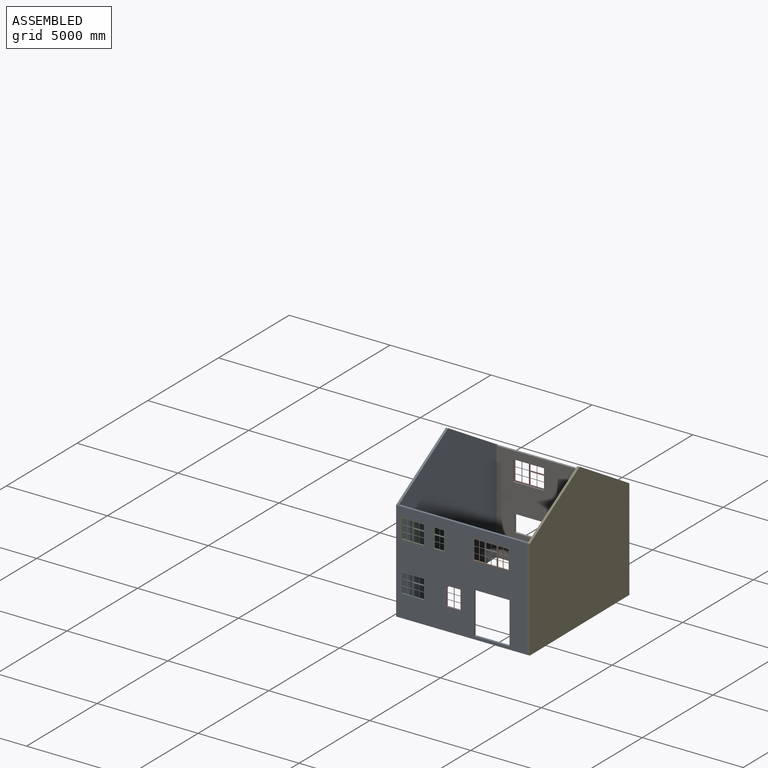
[diagram: assembled view]
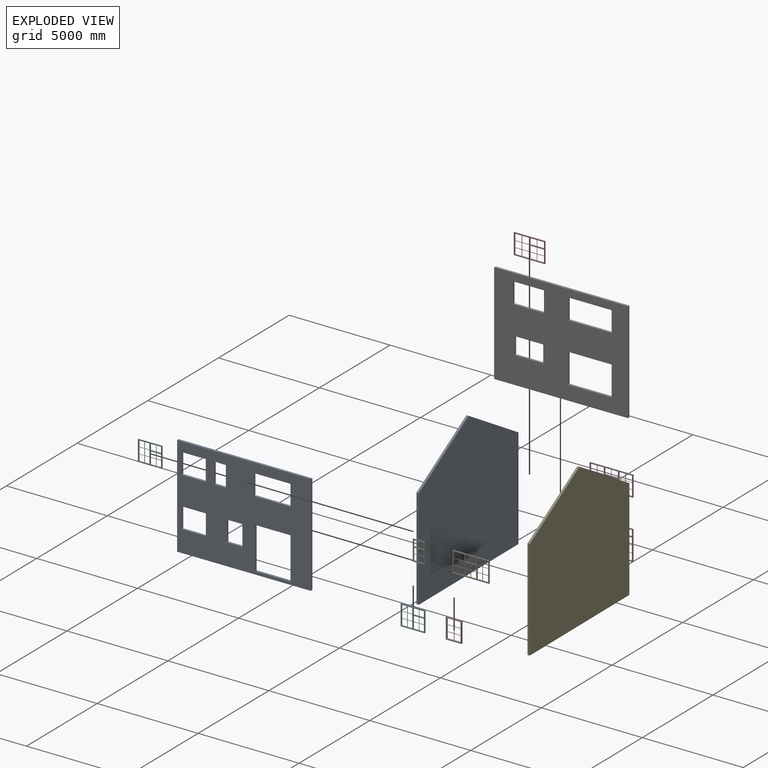
[diagram: exploded view]
GUIDED TOUR — MATED ASSEMBLY (Onshape document ad327fb9f70c7c02ca166393, AutoMate assembly ad327fb9f70c7c02ca166393_e42b151d0dddc3678c9ccd06_790ce3b8b7bdf82932ab4021_default)

This assembly has 12 components, labeled P0..P11 below (a component is one placed occurrence of a part; the same part can appear more than once), held together by 33 mates. A mate is a constraint between two components; its type names the relative motion it leaves free:
  PLANAR — leaves sliding in the plane through the listed point (normal = the listed direction) and rotation about that normal free.
Axis/direction vectors are unit vectors and 'through' points are millimeter coordinates, both in the assembly's world frame.

MATES
  1. PLANAR "Planar 12": P1 <-> P8, direction (0.005, -1.000, 0.000) through (1860.18, -4066.74, 3330.43) mm
  2. PLANAR "Planar 16": P9 <-> P6, direction (0.000, 0.000, 1.000) through (1852.17, 3008.31, 1499.83) mm
  3. PLANAR "Planar 18": P9 <-> P6, direction (-0.005, 1.000, 0.000) through (1852.06, 3033.31, 827.41) mm
  4. PLANAR "Planar 8": P0 <-> P6, direction (-0.005, 1.000, 0.000) through (-2811.39, 3011.17, 1812.83) mm
  5. PLANAR "Planar 25": P5 <-> P8, direction (0.000, 0.000, 1.000) through (-2011.20, -4085.11, 1402.83) mm
  6. PLANAR "Planar 21": P8 <-> P2, direction (0.005, -1.000, 0.000) through (438.30, -4073.49, 1857.86) mm
  7. PLANAR "Planar 22": P7 <-> P6, direction (0.000, 0.000, 1.000) through (-1175.79, 2993.93, 3932.83) mm
  8. PLANAR "Planar 7": P6 <-> P0, direction (-1.000, -0.005, 0.000) through (-2867.13, 2954.90, 1812.83) mm
  9. PLANAR "Planar 6": P8 <-> P4, direction (0.000, 0.000, -1.000) through (466.01, -4017.35, -687.17) mm
  10. PLANAR "Planar 31": P10 <-> P8, direction (0.005, -1.000, 0.000) through (-713.71, -4078.95, 3495.33) mm
  11. PLANAR "Planar 3": P6 <-> P4, direction (0.000, 0.000, -1.000) through (432.84, 2970.57, -687.17) mm
  12. PLANAR "Planar 14": P3 <-> P6, direction (0.000, 0.000, 1.000) through (1860.17, 3008.34, 3932.83) mm
  13. PLANAR "Planar 26": P5 <-> P8, direction (-1.000, -0.005, 0.000) through (-2608.81, -4062.95, 892.83) mm
  14. PLANAR "Planar 19": P8 <-> P2, direction (1.000, 0.005, 0.000) through (-2608.95, -4031.95, 3322.83) mm
  15. PLANAR "Planar 24": P7 <-> P6, direction (-0.005, 1.000, 0.000) through (-1136.16, 3019.12, 3438.84) mm
  16. PLANAR "Planar 1": P6 <-> P4, direction (1.000, 0.005, 0.000) through (3732.80, 2986.23, 1812.83) mm
  17. PLANAR "Planar 5": P8 <-> P4, direction (1.000, 0.005, 0.000) through (3765.97, -4001.69, 1812.83) mm
  18. PLANAR "Planar 28": P5 <-> P8, direction (0.005, -1.000, 0.000) through (-1984.51, -4084.99, 906.75) mm
  19. PLANAR "Planar 4": P4 <-> P8, direction (0.005, -1.000, 0.000) through (3710.24, -4057.95, 1812.83) mm
  20. PLANAR "Planar 9": P0 <-> P6, direction (0.000, 0.000, -1.000) through (-2794.54, -538.79, -687.17) mm
  21. PLANAR "Planar 30": P10 <-> P8, direction (1.000, 0.005, 0.000) through (-423.83, -4052.58, 3322.83) mm
  22. PLANAR "Planar 32": P11 <-> P8, direction (0.000, 0.000, 1.000) through (6.10, -4038.04, 1402.83) mm
  23. PLANAR "Planar 17": P9 <-> P6, direction (-1.000, -0.005, 0.000) through (779.69, 3003.22, 764.83) mm
  24. PLANAR "Planar 11": P1 <-> P8, direction (1.000, 0.005, 0.000) through (2766.13, -4037.43, 3325.33) mm
  25. PLANAR "Planar 20": P2 <-> P8, direction (0.000, 0.000, 1.000) through (-2013.81, -4060.13, 3832.83) mm
  26. PLANAR "Planar 13": P6 <-> P3, direction (-1.000, -0.005, 0.000) through (2932.81, 2982.44, 3422.83) mm
  27. PLANAR "Planar 23": P7 <-> P6, direction (1.000, 0.005, 0.000) through (-408.30, 2997.58, 3422.83) mm
  28. PLANAR "Planar 34": P11 <-> P8, direction (0.005, -1.000, 0.000) through (6.28, -4075.54, 892.83) mm
  29. PLANAR "Planar 29": P10 <-> P8, direction (0.000, 0.000, 1.000) through (-713.83, -4053.95, 3832.83) mm
  30. PLANAR "Planar 2": P4 <-> P6, direction (-0.005, 1.000, 0.000) through (3676.54, 3041.97, 1812.83) mm
  31. PLANAR "Planar 10": P1 <-> P8, direction (0.000, 0.000, 1.000) through (1858.64, -4041.74, 3837.83) mm
  32. PLANAR "Planar 33": P11 <-> P8, direction (1.000, 0.005, 0.000) through (391.10, -4036.21, 892.83) mm
  33. PLANAR "Planar 15": P3 <-> P6, direction (-0.005, 1.000, 0.000) through (1860.06, 3033.34, 3887.83) mm

ASSEMBLY ORDER
  1. P4 — the base component [order verified]
  2. P3 [order verified]
  3. P9 [order verified]
  4. P1 [order verified]
  5. P8 [order verified]
  6. P6 [order verified]
  7. P11 [order verified]
  8. P10 [order verified]
  9. P7 [order verified]
  10. P5 [order verified]
  11. P2 [order verified]
  12. P0 [order verified]
Order-tag legend:
  [order verified] — this step's position reverses a verified removal order: the component was checked to insert without passing through the ones already placed.

Of the 12 components, 12 carry the full construction recipe — the FeatureScript program that regenerates the part's solid from scratch; the rest are supplied as boundary geometry only.
Each toured component is shown spotlighted twice — in the assembled view, then in the exploded view, where a leader line traces a displaced component back to its assembled socket (saturated green if recipe-attached, orange if geometry-only; every other component desaturated gray) — followed by its recipe or geometry summary and the mates that hold it.
NOTE — document 2 of 2 of this assembly tour. The two overview renders and the header above are repeated from document 1; the component sections below continue where the previous document stopped.
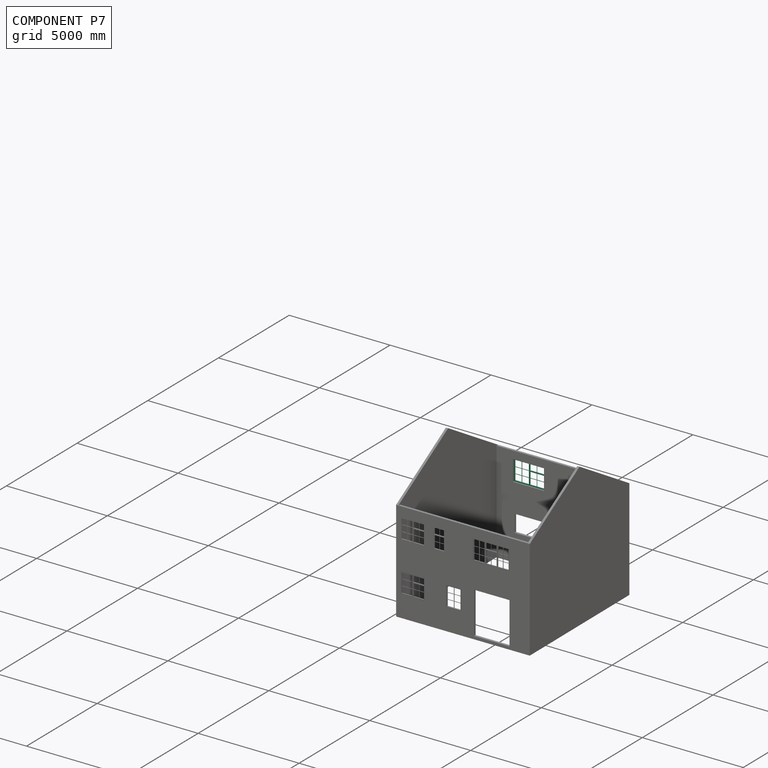
[diagram: component P7 — assembled]
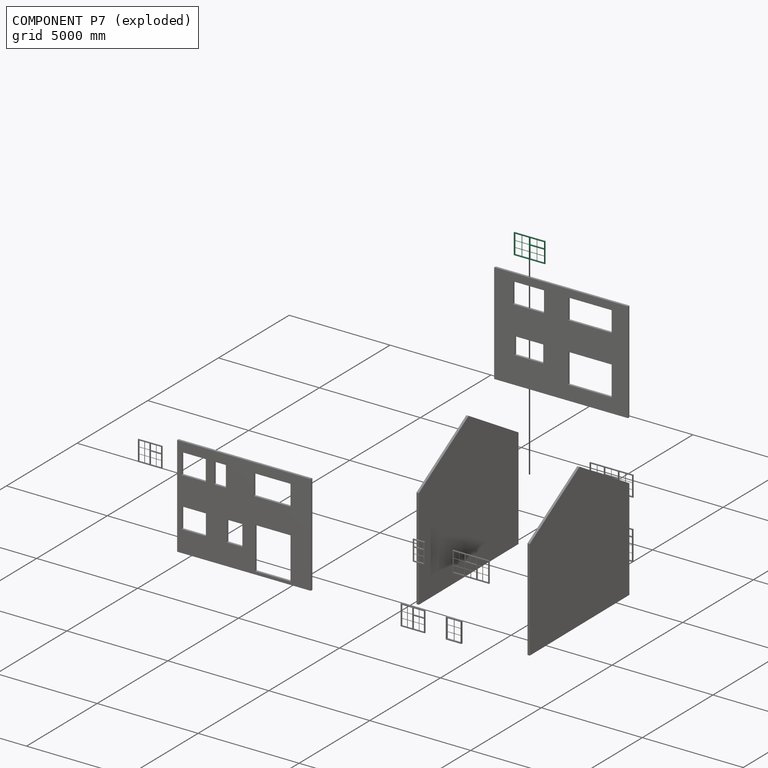
[diagram: component P7 — exploded]
COMPONENT P7 — recipe-attached (CADFS 00879215, mesh-verified: the recipe's output STEP matches this component's geometry to below the mesh-comparison resolution (tessellation chordal tolerance ~2.77 mm)).
Held by: PLANAR mate "Planar 22" to P6; PLANAR mate "Planar 24" to P6; PLANAR mate "Planar 23" to P6.
Construction recipe (FeatureScript — the CAD program that rebuilds this solid; sketch coordinates are in the units given by the * unit suffixes, e.g. mm):

FeatureScript 2656;
import(path : "onshape/std/geometry.fs", version : "2656.0");
import(path : "onshape/std/common.fs", version : "2656.0");
const mm = millimeter;
const VERTEX = EntityType.VERTEX;
const EDGE = EntityType.EDGE;
const FACE = EntityType.FACE;
const BODY = EntityType.BODY;
function v(x, y){return vector(x, y);}
function OD(order){return orderDisambiguation(order);}
function OSD(set){return originalSetDisambiguation(set);}
function TD(topology){return topologyDisambiguation(topology);}
function TDD(query){return trueDependencyDisambiguation(query);}
function sQuery(a, b, c) {return sketchEntityQuery(a, b, c);}

annotation { "Feature Type Name" : "Feature", "Feature Type Description" : "" }
export const myFeature = defineFeature(function(context is Context, id is Id, definition is map)
    precondition{}
    {
        {
            var Q0;
            Q0=qCreatedBy(makeId("Front.planeOp"),FACE);
            var sketch = newSketch(context, id + "F0", { "sketchPlane" : qUnion([Q0])});
            skLineSegment(sketch, "E0.bottom", {"start": v(0, 0) * mm, "end": v(1535, 0) * mm});
            skLineSegment(sketch, "E0.top", {"start": v(0, 1020) * mm, "end": v(1535, 1020) * mm});
            skLineSegment(sketch, "E0.left", {"start": v(0, 0) * mm, "end": v(0, 1020) * mm});
            skLineSegment(sketch, "E0.right", {"start": v(1535, 0) * mm, "end": v(1535, 1020) * mm});
            skLineSegment(sketch, "E1.bottom", {"start": v(45, 975) * mm, "end": v(745, 975) * mm});
            skLineSegment(sketch, "E1.top", {"start": v(45, 45) * mm, "end": v(745, 45) * mm});
            skLineSegment(sketch, "E1.left", {"start": v(45, 975) * mm, "end": v(45, 45) * mm});
            skLineSegment(sketch, "E1.right", {"start": v(745, 975) * mm, "end": v(745, 45) * mm});
            skLineSegment(sketch, "E2.bottom", {"start": v(790, 975) * mm, "end": v(1490, 975) * mm});
            skLineSegment(sketch, "E2.top", {"start": v(790, 682.5) * mm, "end": v(1490, 682.5) * mm});
            skLineSegment(sketch, "E2.left", {"start": v(790, 975) * mm, "end": v(790, 682.5) * mm});
            skLineSegment(sketch, "E2.right", {"start": v(1490, 975) * mm, "end": v(1490, 682.5) * mm});
            skLineSegment(sketch, "E3.bottom", {"start": v(790, 637.5) * mm, "end": v(1490, 637.5) * mm});
            skLineSegment(sketch, "E3.top", {"start": v(790, 45) * mm, "end": v(1490, 45) * mm});
            skLineSegment(sketch, "E3.left", {"start": v(790, 637.5) * mm, "end": v(790, 45) * mm});
            skLineSegment(sketch, "E3.right", {"start": v(1490, 637.5) * mm, "end": v(1490, 45) * mm});
            skSolve(sketch);
        }
        {
            var Q0;
            Q0=qSketchRegion(id+"F0",true);
            extrude(context, id + "F1", {"entities" : qUnion([Q0]), "depth" : 50 * mm, "offsetDistance" : 25 * mm});
        }
        {
            var Q0;
            Q0=qCreatedBy(makeId("Front.planeOp"),FACE);
            var sketch = newSketch(context, id + "F2", { "sketchPlane" : qUnion([Q0])});
            skLineSegment(sketch, "E4.bottom", {"start": v(387.5, 975) * mm, "end": v(402.5, 975) * mm});
            skLineSegment(sketch, "E4.top", {"start": v(387.5, 45) * mm, "end": v(402.5, 45) * mm});
            skLineSegment(sketch, "E4.left", {"start": v(387.5, 975) * mm, "end": v(387.5, 675) * mm});
            skLineSegment(sketch, "E4.right", {"start": v(402.5, 975) * mm, "end": v(402.5, 675) * mm});
            skLineSegment(sketch, "E5.bottom", {"start": v(45, 675) * mm, "end": v(387.5, 675) * mm});
            skLineSegment(sketch, "E5.top", {"start": v(45, 660) * mm, "end": v(387.5, 660) * mm});
            skLineSegment(sketch, "E5.left", {"start": v(45, 675) * mm, "end": v(45, 660) * mm});
            skLineSegment(sketch, "E5.right", {"start": v(745, 675) * mm, "end": v(745, 660) * mm});
            skLineSegment(sketch, "E6.bottom", {"start": v(45, 360) * mm, "end": v(387.5, 360) * mm});
            skLineSegment(sketch, "E6.top", {"start": v(45, 345) * mm, "end": v(387.5, 345) * mm});
            skLineSegment(sketch, "E6.left", {"start": v(45, 360) * mm, "end": v(45, 345) * mm});
            skLineSegment(sketch, "E6.right", {"start": v(745, 360) * mm, "end": v(745, 345) * mm});
            skLineSegment(sketch, "E7.trimOffspring", {"start": v(402.5, 675) * mm, "end": v(745, 675) * mm});
            skLineSegment(sketch, "E8.trimOffspring", {"start": v(387.5, 660) * mm, "end": v(387.5, 360) * mm});
            skLineSegment(sketch, "E9.trimOffspring", {"start": v(402.5, 660) * mm, "end": v(745, 660) * mm});
            skLineSegment(sketch, "E10.trimOffspring", {"start": v(402.5, 660) * mm, "end": v(402.5, 360) * mm});
            skLineSegment(sketch, "E11.trimOffspring", {"start": v(402.5, 360) * mm, "end": v(745, 360) * mm});
            skLineSegment(sketch, "E12.trimOffspring", {"start": v(387.5, 345) * mm, "end": v(387.5, 45) * mm});
            skLineSegment(sketch, "E13.trimOffspring", {"start": v(402.5, 345) * mm, "end": v(745, 345) * mm});
            skLineSegment(sketch, "E14.trimOffspring", {"start": v(402.5, 345) * mm, "end": v(402.5, 45) * mm});
            skLineSegment(sketch, "E15.bottom", {"start": v(790, 360) * mm, "end": v(1132.5, 360) * mm});
            skLineSegment(sketch, "E15.top", {"start": v(790, 345) * mm, "end": v(1132.5, 345) * mm});
            skLineSegment(sketch, "E15.left", {"start": v(790, 360) * mm, "end": v(790, 345) * mm});
            skLineSegment(sketch, "E15.right", {"start": v(1490, 360) * mm, "end": v(1490, 345) * mm});
            skLineSegment(sketch, "E16.bottom", {"start": v(1132.5, 637.5) * mm, "end": v(1147.5, 637.5) * mm});
            skLineSegment(sketch, "E16.top", {"start": v(1132.5, 45) * mm, "end": v(1147.5, 45) * mm});
            skLineSegment(sketch, "E16.left", {"start": v(1132.5, 637.5) * mm, "end": v(1132.5, 360) * mm});
            skLineSegment(sketch, "E16.right", {"start": v(1147.5, 637.5) * mm, "end": v(1147.5, 360) * mm});
            skLineSegment(sketch, "E17.bottom", {"start": v(1132.5, 975) * mm, "end": v(1147.5, 975) * mm});
            skLineSegment(sketch, "E17.top", {"start": v(1132.5, 682.5) * mm, "end": v(1147.5, 682.5) * mm});
            skLineSegment(sketch, "E17.left", {"start": v(1132.5, 975) * mm, "end": v(1132.5, 682.5) * mm});
            skLineSegment(sketch, "E17.right", {"start": v(1147.5, 975) * mm, "end": v(1147.5, 682.5) * mm});
            skLineSegment(sketch, "E18.trimOffspring", {"start": v(1147.5, 360) * mm, "end": v(1490, 360) * mm});
            skLineSegment(sketch, "E19.trimOffspring", {"start": v(1132.5, 345) * mm, "end": v(1132.5, 45) * mm});
            skLineSegment(sketch, "E20.trimOffspring", {"start": v(1147.5, 345) * mm, "end": v(1490, 345) * mm});
            skLineSegment(sketch, "E21.trimOffspring", {"start": v(1147.5, 345) * mm, "end": v(1147.5, 45) * mm});
            skSolve(sketch);
        }
        {
            var Q0;
            Q0=qSketchRegion(id+"F2",true);
            extrude(context, id + "F3", {"entities" : qUnion([Q0]), "operationType" : NewBodyOperationType.ADD, "depth" : 20 * mm, "offsetDistance" : 25 * mm});
        }
        {
            var Q0;
            Q0=makeQuery(id+"F1.opExtrude","SWEPT_BODY",BODY,{"disambiguationData":[OSD([sQuery(id+"F0.wireOp",EDGE,"E0.bottom"),sQuery(id+"F0.wireOp",EDGE,"E0.top"),sQuery(id+"F0.wireOp",EDGE,"E0.left"),sQuery(id+"F0.wireOp",EDGE,"E0.right"),sQuery(id+"F0.wireOp",EDGE,"E1.bottom"),sQuery(id+"F0.wireOp",EDGE,"E1.top"),sQuery(id+"F0.wireOp",EDGE,"E1.left"),sQuery(id+"F0.wireOp",EDGE,"E1.right"),sQuery(id+"F0.wireOp",EDGE,"E2.bottom"),sQuery(id+"F0.wireOp",EDGE,"E2.top"),sQuery(id+"F0.wireOp",EDGE,"E2.left"),sQuery(id+"F0.wireOp",EDGE,"E2.right"),sQuery(id+"F0.wireOp",EDGE,"E3.bottom"),sQuery(id+"F0.wireOp",EDGE,"E3.top"),sQuery(id+"F0.wireOp",EDGE,"E3.left"),sQuery(id+"F0.wireOp",EDGE,"E3.right")])]});
            var Q1;
            Q1=makeQuery(id+"F1.opExtrude","SWEPT_FACE",FACE,{"disambiguationData":[OSD([sQuery(id+"F0.wireOp",EDGE,"E0.right")])]});
            mirror(context, id + "F4", {"entities" : qUnion([Q0]), "mirrorPlane" : qUnion([Q1])});
        }
        {
            var Q0;
            Q0=makeQuery(id+"F1.opExtrude","SWEPT_BODY",BODY,{"disambiguationData":[OSD([sQuery(id+"F0.wireOp",EDGE,"E0.bottom"),sQuery(id+"F0.wireOp",EDGE,"E0.top"),sQuery(id+"F0.wireOp",EDGE,"E0.left"),sQuery(id+"F0.wireOp",EDGE,"E0.right"),sQuery(id+"F0.wireOp",EDGE,"E1.bottom"),sQuery(id+"F0.wireOp",EDGE,"E1.top"),sQuery(id+"F0.wireOp",EDGE,"E1.left"),sQuery(id+"F0.wireOp",EDGE,"E1.right"),sQuery(id+"F0.wireOp",EDGE,"E2.bottom"),sQuery(id+"F0.wireOp",EDGE,"E2.top"),sQuery(id+"F0.wireOp",EDGE,"E2.left"),sQuery(id+"F0.wireOp",EDGE,"E2.right"),sQuery(id+"F0.wireOp",EDGE,"E3.bottom"),sQuery(id+"F0.wireOp",EDGE,"E3.top"),sQuery(id+"F0.wireOp",EDGE,"E3.left"),sQuery(id+"F0.wireOp",EDGE,"E3.right")])]});
            deleteBodies(context, id + "F5", {"entities" : qUnion([Q0])});
        }
    });
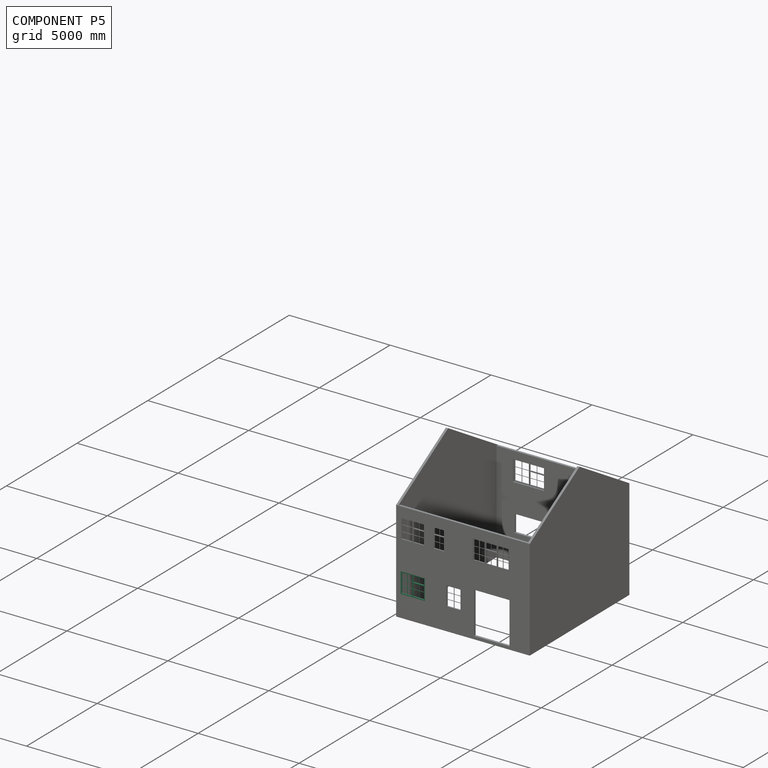
[diagram: component P5 — assembled]
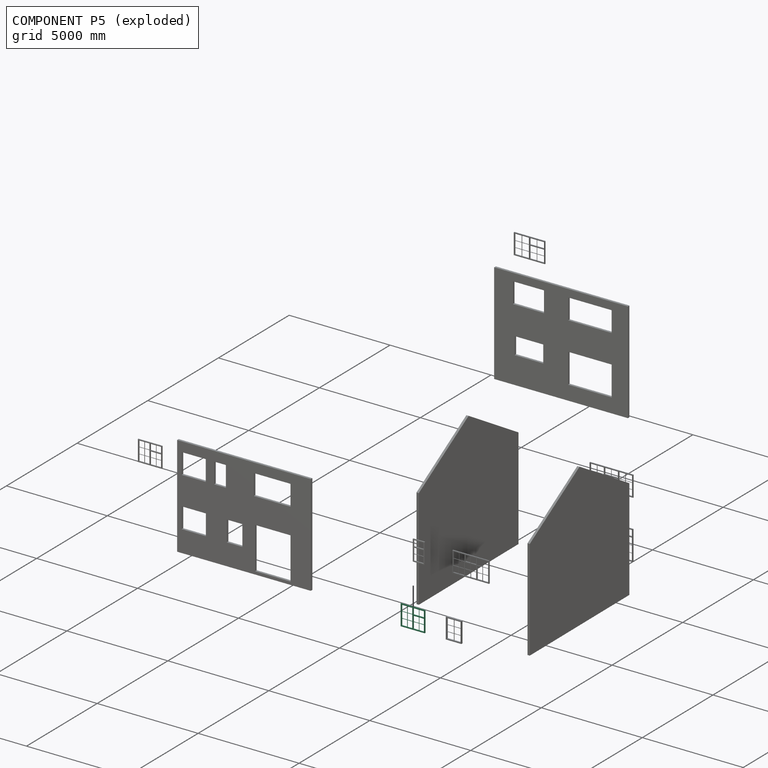
[diagram: component P5 — exploded]
COMPONENT P5 — recipe-attached (CADFS 00846599, mesh-verified: the recipe's output STEP matches this component's geometry to below the mesh-comparison resolution (tessellation chordal tolerance ~2.35 mm)).
Held by: PLANAR mate "Planar 25" to P8; PLANAR mate "Planar 26" to P8; PLANAR mate "Planar 28" to P8.
Construction recipe (FeatureScript — the CAD program that rebuilds this solid; sketch coordinates are in the units given by the * unit suffixes, e.g. mm):

FeatureScript 2522;
import(path : "onshape/std/geometry.fs", version : "2522.0");
import(path : "onshape/std/common.fs", version : "2522.0");
const mm = millimeter;
const VERTEX = EntityType.VERTEX;
const EDGE = EntityType.EDGE;
const FACE = EntityType.FACE;
const BODY = EntityType.BODY;
function v(x, y){return vector(x, y);}
function OD(order){return orderDisambiguation(order);}
function OSD(set){return originalSetDisambiguation(set);}
function TD(topology){return topologyDisambiguation(topology);}
function TDD(query){return trueDependencyDisambiguation(query);}
function sQuery(a, b, c) {return sketchEntityQuery(a, b, c);}

annotation { "Feature Type Name" : "Feature", "Feature Type Description" : "" }
export const myFeature = defineFeature(function(context is Context, id is Id, definition is map)
    precondition{}
    {
        {
            var Q0;
            Q0=qCreatedBy(makeId("Front.planeOp"),FACE);
            var sketch = newSketch(context, id + "F0", { "sketchPlane" : qUnion([Q0])});
            skLineSegment(sketch, "E0.bottom", {"start": v(0, 0) * mm, "end": v(1190, 0) * mm});
            skLineSegment(sketch, "E0.top", {"start": v(0, 1020) * mm, "end": v(1190, 1020) * mm});
            skLineSegment(sketch, "E0.left", {"start": v(0, 0) * mm, "end": v(0, 1020) * mm});
            skLineSegment(sketch, "E0.right", {"start": v(1190, 0) * mm, "end": v(1190, 1020) * mm});
            skLineSegment(sketch, "E1.bottom", {"start": v(45, 975) * mm, "end": v(572.5, 975) * mm});
            skLineSegment(sketch, "E1.top", {"start": v(45, 45) * mm, "end": v(572.5, 45) * mm});
            skLineSegment(sketch, "E1.left", {"start": v(45, 975) * mm, "end": v(45, 45) * mm});
            skLineSegment(sketch, "E1.right", {"start": v(572.5, 975) * mm, "end": v(572.5, 45) * mm});
            skLineSegment(sketch, "E2.bottom", {"start": v(617.5, 975) * mm, "end": v(1145, 975) * mm});
            skLineSegment(sketch, "E2.top", {"start": v(617.5, 682.5) * mm, "end": v(1145, 682.5) * mm});
            skLineSegment(sketch, "E2.left", {"start": v(617.5, 975) * mm, "end": v(617.5, 682.5) * mm});
            skLineSegment(sketch, "E2.right", {"start": v(1145, 975) * mm, "end": v(1145, 682.5) * mm});
            skLineSegment(sketch, "E3.bottom", {"start": v(617.5, 637.5) * mm, "end": v(1145, 637.5) * mm});
            skLineSegment(sketch, "E3.top", {"start": v(617.5, 45) * mm, "end": v(1145, 45) * mm});
            skLineSegment(sketch, "E3.left", {"start": v(617.5, 637.5) * mm, "end": v(617.5, 45) * mm});
            skLineSegment(sketch, "E3.right", {"start": v(1145, 637.5) * mm, "end": v(1145, 45) * mm});
            skSolve(sketch);
        }
        {
            var Q0;
            Q0=qSketchRegion(id+"F0",true);
            extrude(context, id + "F1", {"entities" : qUnion([Q0]), "depth" : 50 * mm, "offsetDistance" : 25 * mm});
        }
        {
            var Q0;
            Q0=qCreatedBy(makeId("Front.planeOp"),FACE);
            var sketch = newSketch(context, id + "F2", { "sketchPlane" : qUnion([Q0])});
            skLineSegment(sketch, "E4.bottom", {"start": v(301.25, 975) * mm, "end": v(316.25, 975) * mm});
            skLineSegment(sketch, "E4.top", {"start": v(301.25, 45) * mm, "end": v(316.25, 45) * mm});
            skLineSegment(sketch, "E4.left", {"start": v(301.25, 975) * mm, "end": v(301.25, 675) * mm});
            skLineSegment(sketch, "E4.right", {"start": v(316.25, 975) * mm, "end": v(316.25, 675) * mm});
            skLineSegment(sketch, "E5.bottom", {"start": v(45, 675) * mm, "end": v(301.25, 675) * mm});
            skLineSegment(sketch, "E5.top", {"start": v(45, 660) * mm, "end": v(301.25, 660) * mm});
            skLineSegment(sketch, "E5.left", {"start": v(45, 675) * mm, "end": v(45, 660) * mm});
            skLineSegment(sketch, "E5.right", {"start": v(572.5, 675) * mm, "end": v(572.5, 660) * mm});
            skLineSegment(sketch, "E6.bottom", {"start": v(45, 360) * mm, "end": v(301.25, 360) * mm});
            skLineSegment(sketch, "E6.top", {"start": v(45, 345) * mm, "end": v(301.25, 345) * mm});
            skLineSegment(sketch, "E6.left", {"start": v(45, 360) * mm, "end": v(45, 345) * mm});
            skLineSegment(sketch, "E6.right", {"start": v(572.5, 360) * mm, "end": v(572.5, 345) * mm});
            skLineSegment(sketch, "E7.trimOffspring", {"start": v(316.25, 675) * mm, "end": v(572.5, 675) * mm});
            skLineSegment(sketch, "E8.trimOffspring", {"start": v(301.25, 660) * mm, "end": v(301.25, 360) * mm});
            skLineSegment(sketch, "E9.trimOffspring", {"start": v(316.25, 660) * mm, "end": v(572.5, 660) * mm});
            skLineSegment(sketch, "E10.trimOffspring", {"start": v(316.25, 660) * mm, "end": v(316.25, 360) * mm});
            skLineSegment(sketch, "E11.trimOffspring", {"start": v(316.25, 360) * mm, "end": v(572.5, 360) * mm});
            skLineSegment(sketch, "E12.trimOffspring", {"start": v(301.25, 345) * mm, "end": v(301.25, 45) * mm});
            skLineSegment(sketch, "E13.trimOffspring", {"start": v(316.25, 345) * mm, "end": v(572.5, 345) * mm});
            skLineSegment(sketch, "E14.trimOffspring", {"start": v(316.25, 345) * mm, "end": v(316.25, 45) * mm});
            skLineSegment(sketch, "E15.bottom", {"start": v(617.5, 360) * mm, "end": v(873.75, 360) * mm});
            skLineSegment(sketch, "E15.top", {"start": v(617.5, 345) * mm, "end": v(873.75, 345) * mm});
            skLineSegment(sketch, "E15.left", {"start": v(617.5, 360) * mm, "end": v(617.5, 345) * mm});
            skLineSegment(sketch, "E15.right", {"start": v(1145, 360) * mm, "end": v(1145, 345) * mm});
            skLineSegment(sketch, "E16.bottom", {"start": v(873.75, 637.5) * mm, "end": v(888.75, 637.5) * mm});
            skLineSegment(sketch, "E16.top", {"start": v(873.75, 45) * mm, "end": v(888.75, 45) * mm});
            skLineSegment(sketch, "E16.left", {"start": v(873.75, 637.5) * mm, "end": v(873.75, 360) * mm});
            skLineSegment(sketch, "E16.right", {"start": v(888.75, 637.5) * mm, "end": v(888.75, 360) * mm});
            skLineSegment(sketch, "E17.bottom", {"start": v(873.75, 975) * mm, "end": v(888.75, 975) * mm});
            skLineSegment(sketch, "E17.top", {"start": v(873.75, 682.5) * mm, "end": v(888.75, 682.5) * mm});
            skLineSegment(sketch, "E17.left", {"start": v(873.75, 975) * mm, "end": v(873.75, 682.5) * mm});
            skLineSegment(sketch, "E17.right", {"start": v(888.75, 975) * mm, "end": v(888.75, 682.5) * mm});
            skLineSegment(sketch, "E18.trimOffspring", {"start": v(888.75, 360) * mm, "end": v(1145, 360) * mm});
            skLineSegment(sketch, "E19.trimOffspring", {"start": v(873.75, 345) * mm, "end": v(873.75, 45) * mm});
            skLineSegment(sketch, "E20.trimOffspring", {"start": v(888.75, 345) * mm, "end": v(1145, 345) * mm});
            skLineSegment(sketch, "E21.trimOffspring", {"start": v(888.75, 345) * mm, "end": v(888.75, 45) * mm});
            skSolve(sketch);
        }
        {
            var Q0;
            Q0 = qSketchRegion(id + "F2", true);
            extrude(context, id + "F3", {"entities" : qUnion([Q0]), "operationType" : NewBodyOperationType.ADD, "depth" : 20 * mm, "offsetDistance" : 25 * mm});
        }
    });
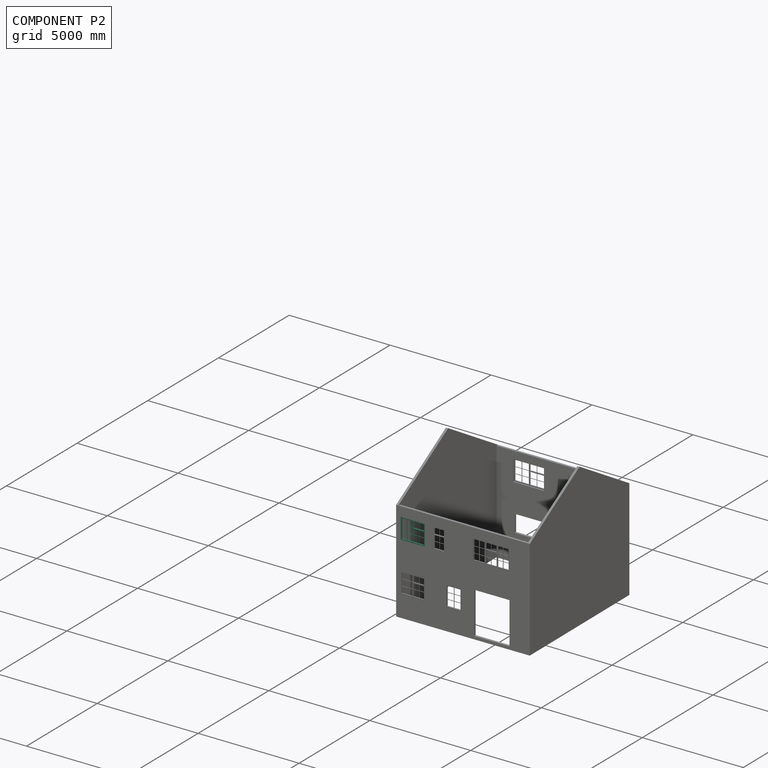
[diagram: component P2 — assembled]
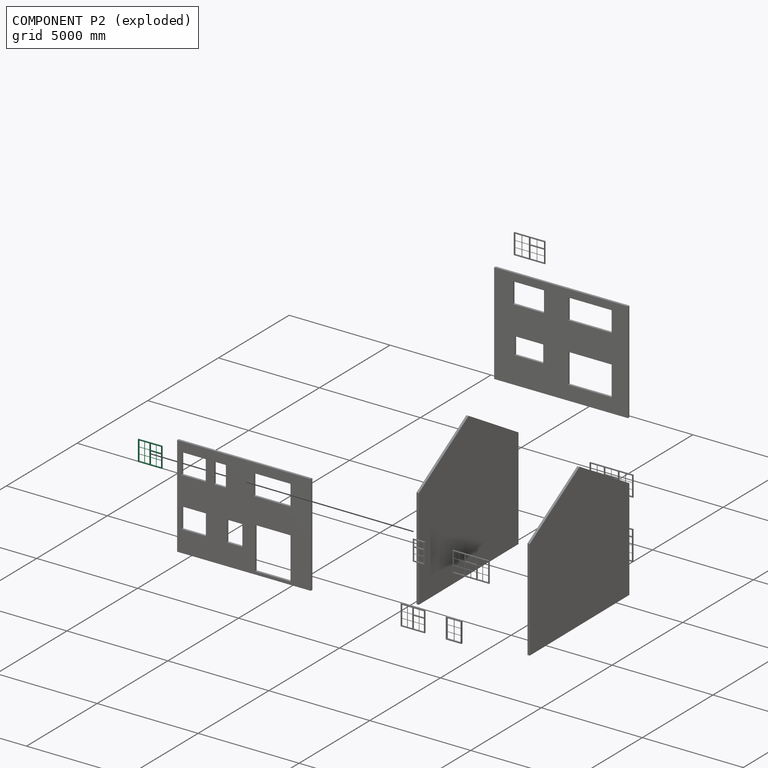
[diagram: component P2 — exploded]
COMPONENT P2 — recipe-attached (CADFS 00846599, mesh-verified: the recipe's output STEP matches this component's geometry to below the mesh-comparison resolution (tessellation chordal tolerance ~2.35 mm)).
Held by: PLANAR mate "Planar 21" to P8; PLANAR mate "Planar 19" to P8; PLANAR mate "Planar 20" to P8.
Construction recipe (FeatureScript — the CAD program that rebuilds this solid; sketch coordinates are in the units given by the * unit suffixes, e.g. mm):

FeatureScript 2522;
import(path : "onshape/std/geometry.fs", version : "2522.0");
import(path : "onshape/std/common.fs", version : "2522.0");
const mm = millimeter;
const VERTEX = EntityType.VERTEX;
const EDGE = EntityType.EDGE;
const FACE = EntityType.FACE;
const BODY = EntityType.BODY;
function v(x, y){return vector(x, y);}
function OD(order){return orderDisambiguation(order);}
function OSD(set){return originalSetDisambiguation(set);}
function TD(topology){return topologyDisambiguation(topology);}
function TDD(query){return trueDependencyDisambiguation(query);}
function sQuery(a, b, c) {return sketchEntityQuery(a, b, c);}

annotation { "Feature Type Name" : "Feature", "Feature Type Description" : "" }
export const myFeature = defineFeature(function(context is Context, id is Id, definition is map)
    precondition{}
    {
        {
            var Q0;
            Q0=qCreatedBy(makeId("Front.planeOp"),FACE);
            var sketch = newSketch(context, id + "F0", { "sketchPlane" : qUnion([Q0])});
            skLineSegment(sketch, "E0.bottom", {"start": v(0, 0) * mm, "end": v(1190, 0) * mm});
            skLineSegment(sketch, "E0.top", {"start": v(0, 1020) * mm, "end": v(1190, 1020) * mm});
            skLineSegment(sketch, "E0.left", {"start": v(0, 0) * mm, "end": v(0, 1020) * mm});
            skLineSegment(sketch, "E0.right", {"start": v(1190, 0) * mm, "end": v(1190, 1020) * mm});
            skLineSegment(sketch, "E1.bottom", {"start": v(45, 975) * mm, "end": v(572.5, 975) * mm});
            skLineSegment(sketch, "E1.top", {"start": v(45, 45) * mm, "end": v(572.5, 45) * mm});
            skLineSegment(sketch, "E1.left", {"start": v(45, 975) * mm, "end": v(45, 45) * mm});
            skLineSegment(sketch, "E1.right", {"start": v(572.5, 975) * mm, "end": v(572.5, 45) * mm});
            skLineSegment(sketch, "E2.bottom", {"start": v(617.5, 975) * mm, "end": v(1145, 975) * mm});
            skLineSegment(sketch, "E2.top", {"start": v(617.5, 682.5) * mm, "end": v(1145, 682.5) * mm});
            skLineSegment(sketch, "E2.left", {"start": v(617.5, 975) * mm, "end": v(617.5, 682.5) * mm});
            skLineSegment(sketch, "E2.right", {"start": v(1145, 975) * mm, "end": v(1145, 682.5) * mm});
            skLineSegment(sketch, "E3.bottom", {"start": v(617.5, 637.5) * mm, "end": v(1145, 637.5) * mm});
            skLineSegment(sketch, "E3.top", {"start": v(617.5, 45) * mm, "end": v(1145, 45) * mm});
            skLineSegment(sketch, "E3.left", {"start": v(617.5, 637.5) * mm, "end": v(617.5, 45) * mm});
            skLineSegment(sketch, "E3.right", {"start": v(1145, 637.5) * mm, "end": v(1145, 45) * mm});
            skSolve(sketch);
        }
        {
            var Q0;
            Q0=qSketchRegion(id+"F0",true);
            extrude(context, id + "F1", {"entities" : qUnion([Q0]), "depth" : 50 * mm, "offsetDistance" : 25 * mm});
        }
        {
            var Q0;
            Q0=qCreatedBy(makeId("Front.planeOp"),FACE);
            var sketch = newSketch(context, id + "F2", { "sketchPlane" : qUnion([Q0])});
            skLineSegment(sketch, "E4.bottom", {"start": v(301.25, 975) * mm, "end": v(316.25, 975) * mm});
            skLineSegment(sketch, "E4.top", {"start": v(301.25, 45) * mm, "end": v(316.25, 45) * mm});
            skLineSegment(sketch, "E4.left", {"start": v(301.25, 975) * mm, "end": v(301.25, 675) * mm});
            skLineSegment(sketch, "E4.right", {"start": v(316.25, 975) * mm, "end": v(316.25, 675) * mm});
            skLineSegment(sketch, "E5.bottom", {"start": v(45, 675) * mm, "end": v(301.25, 675) * mm});
            skLineSegment(sketch, "E5.top", {"start": v(45, 660) * mm, "end": v(301.25, 660) * mm});
            skLineSegment(sketch, "E5.left", {"start": v(45, 675) * mm, "end": v(45, 660) * mm});
            skLineSegment(sketch, "E5.right", {"start": v(572.5, 675) * mm, "end": v(572.5, 660) * mm});
            skLineSegment(sketch, "E6.bottom", {"start": v(45, 360) * mm, "end": v(301.25, 360) * mm});
            skLineSegment(sketch, "E6.top", {"start": v(45, 345) * mm, "end": v(301.25, 345) * mm});
            skLineSegment(sketch, "E6.left", {"start": v(45, 360) * mm, "end": v(45, 345) * mm});
            skLineSegment(sketch, "E6.right", {"start": v(572.5, 360) * mm, "end": v(572.5, 345) * mm});
            skLineSegment(sketch, "E7.trimOffspring", {"start": v(316.25, 675) * mm, "end": v(572.5, 675) * mm});
            skLineSegment(sketch, "E8.trimOffspring", {"start": v(301.25, 660) * mm, "end": v(301.25, 360) * mm});
            skLineSegment(sketch, "E9.trimOffspring", {"start": v(316.25, 660) * mm, "end": v(572.5, 660) * mm});
            skLineSegment(sketch, "E10.trimOffspring", {"start": v(316.25, 660) * mm, "end": v(316.25, 360) * mm});
            skLineSegment(sketch, "E11.trimOffspring", {"start": v(316.25, 360) * mm, "end": v(572.5, 360) * mm});
            skLineSegment(sketch, "E12.trimOffspring", {"start": v(301.25, 345) * mm, "end": v(301.25, 45) * mm});
            skLineSegment(sketch, "E13.trimOffspring", {"start": v(316.25, 345) * mm, "end": v(572.5, 345) * mm});
            skLineSegment(sketch, "E14.trimOffspring", {"start": v(316.25, 345) * mm, "end": v(316.25, 45) * mm});
            skLineSegment(sketch, "E15.bottom", {"start": v(617.5, 360) * mm, "end": v(873.75, 360) * mm});
            skLineSegment(sketch, "E15.top", {"start": v(617.5, 345) * mm, "end": v(873.75, 345) * mm});
            skLineSegment(sketch, "E15.left", {"start": v(617.5, 360) * mm, "end": v(617.5, 345) * mm});
            skLineSegment(sketch, "E15.right", {"start": v(1145, 360) * mm, "end": v(1145, 345) * mm});
            skLineSegment(sketch, "E16.bottom", {"start": v(873.75, 637.5) * mm, "end": v(888.75, 637.5) * mm});
            skLineSegment(sketch, "E16.top", {"start": v(873.75, 45) * mm, "end": v(888.75, 45) * mm});
            skLineSegment(sketch, "E16.left", {"start": v(873.75, 637.5) * mm, "end": v(873.75, 360) * mm});
            skLineSegment(sketch, "E16.right", {"start": v(888.75, 637.5) * mm, "end": v(888.75, 360) * mm});
            skLineSegment(sketch, "E17.bottom", {"start": v(873.75, 975) * mm, "end": v(888.75, 975) * mm});
            skLineSegment(sketch, "E17.top", {"start": v(873.75, 682.5) * mm, "end": v(888.75, 682.5) * mm});
            skLineSegment(sketch, "E17.left", {"start": v(873.75, 975) * mm, "end": v(873.75, 682.5) * mm});
            skLineSegment(sketch, "E17.right", {"start": v(888.75, 975) * mm, "end": v(888.75, 682.5) * mm});
            skLineSegment(sketch, "E18.trimOffspring", {"start": v(888.75, 360) * mm, "end": v(1145, 360) * mm});
            skLineSegment(sketch, "E19.trimOffspring", {"start": v(873.75, 345) * mm, "end": v(873.75, 45) * mm});
            skLineSegment(sketch, "E20.trimOffspring", {"start": v(888.75, 345) * mm, "end": v(1145, 345) * mm});
            skLineSegment(sketch, "E21.trimOffspring", {"start": v(888.75, 345) * mm, "end": v(888.75, 45) * mm});
            skSolve(sketch);
        }
        {
            var Q0;
            Q0 = qSketchRegion(id + "F2", true);
            extrude(context, id + "F3", {"entities" : qUnion([Q0]), "operationType" : NewBodyOperationType.ADD, "depth" : 20 * mm, "offsetDistance" : 25 * mm});
        }
    });
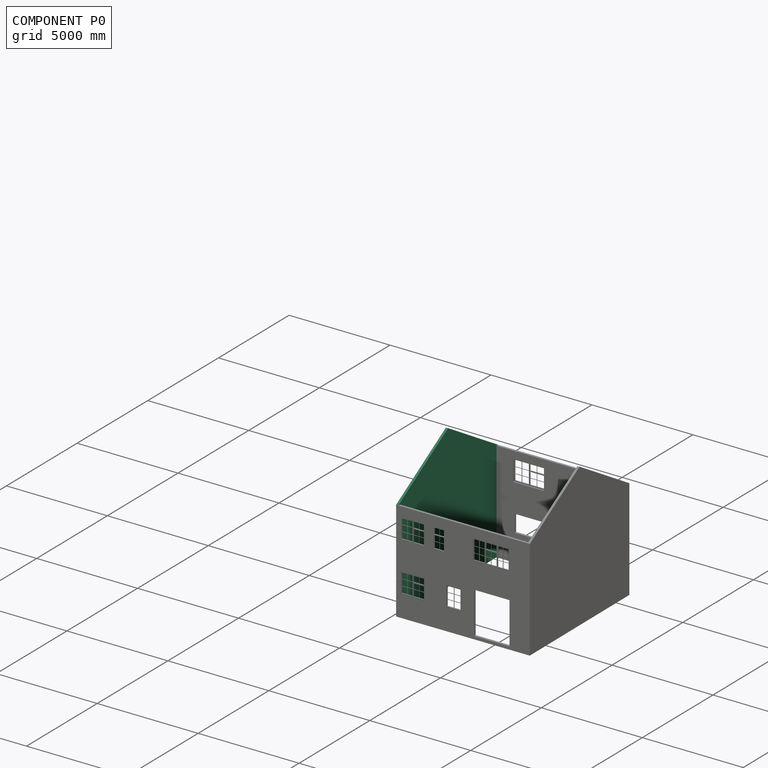
[diagram: component P0 — assembled]
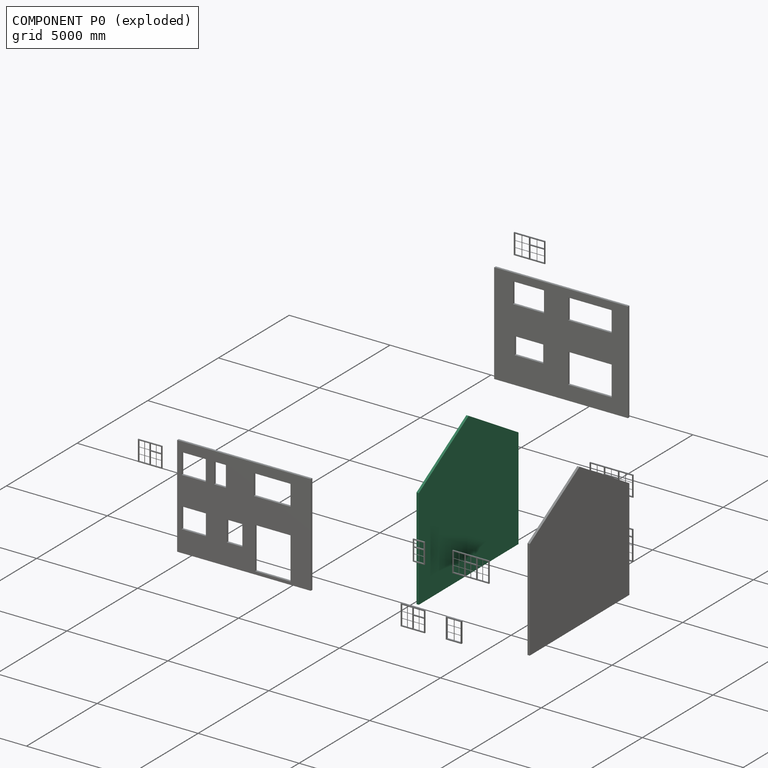
[diagram: component P0 — exploded]
COMPONENT P0 — recipe-attached (CADFS 00879208, mesh-verified: the recipe's output STEP matches this component's geometry to below the mesh-comparison resolution (tessellation chordal tolerance ~15.1 mm)).
Held by: PLANAR mate "Planar 8" to P6; PLANAR mate "Planar 7" to P6; PLANAR mate "Planar 9" to P6.
Construction recipe (FeatureScript — the CAD program that rebuilds this solid; sketch coordinates are in the units given by the * unit suffixes, e.g. mm):

FeatureScript 2599;
import(path : "onshape/std/geometry.fs", version : "2599.0");
import(path : "onshape/std/common.fs", version : "2599.0");
const mm = millimeter;
const VERTEX = EntityType.VERTEX;
const EDGE = EntityType.EDGE;
const FACE = EntityType.FACE;
const BODY = EntityType.BODY;
function v(x, y){return vector(x, y);}
function OD(order){return orderDisambiguation(order);}
function OSD(set){return originalSetDisambiguation(set);}
function TD(topology){return topologyDisambiguation(topology);}
function TDD(query){return trueDependencyDisambiguation(query);}
function sQuery(a, b, c) {return sketchEntityQuery(a, b, c);}

annotation { "Feature Type Name" : "Feature", "Feature Type Description" : "" }
export const myFeature = defineFeature(function(context is Context, id is Id, definition is map)
    precondition{}
    {
        {
            var Q0;
            Q0=qCreatedBy(makeId("Right.planeOp"),FACE);
            var sketch = newSketch(context, id + "F0", { "sketchPlane" : qUnion([Q0])});
            skLineSegment(sketch, "E0.bottom", {"start": v(3548.36, -2713.57) * mm, "end": v(-3551.64, -2713.57) * mm});
            skLineSegment(sketch, "E0.left", {"start": v(3548.36, -2713.57) * mm, "end": v(3548.36, 2286.43) * mm});
            skLineSegment(sketch, "E0.right", {"start": v(-3551.64, -2713.57) * mm, "end": v(-3551.64, 2286.43) * mm});
            skLineSegment(sketch, "E1", {"start": v(3548.36, 2286.43) * mm, "end": v(-1.64, 4386.43) * mm});
            skLineSegment(sketch, "E2", {"start": v(-3551.64, 2286.43) * mm, "end": v(-1.64, 4386.43) * mm});
            skSolve(sketch);
        }
        {
            var Q0;
            Q0=qSketchRegion(id+"F0",true);
            extrude(context, id + "F1", {"entities" : qUnion([Q0]), "depth" : 112 * mm, "offsetDistance" : 25 * mm});
        }
    });
PROVENANCE & LICENSES
Assembly (occurrences, transforms, mates, per-part STEP geometry): AutoMate dataset, Zenodo record 7776208, CC0.
Construction recipes: CADFS (HuggingFace VladPyatov/CADFS, CC-BY-4.0, layered over the ABC dataset), FeatureScript reconstruction programs keyed by ABC model id.
Join: ABC meta listings map ABC model id -> Onshape documentId; within a shared document, parts are matched by geometric signature (bounding-box dims + volume at 0.1% relative tolerance, exact B-rep face/solid counts).
Verification: 12 of this assembly's 12 components carry a recipe attachment, and every attachment is mesh-verified: the CADFS STEP and the AutoMate member STEP were compared as meshes in their shared local frame (symmetric sampled-point-to-mesh distance); worst across the 12 attachments: below the mesh-comparison resolution (tessellation chordal tolerance ~15.1 mm) on a 10042 mm part.
Renders: orthographic iso camera (az 35 / el 25); the floor grid conveys scale (grid pitch printed in each image; no ruler). In the exploded view each component is displaced by its stored offset vector: the offsets alone carry the explosion direction (mate normal/axis signs are not orientation cues and do not encode it), and separation distances are assigned per mate-chain, not proportionally to assembly-order depth.
